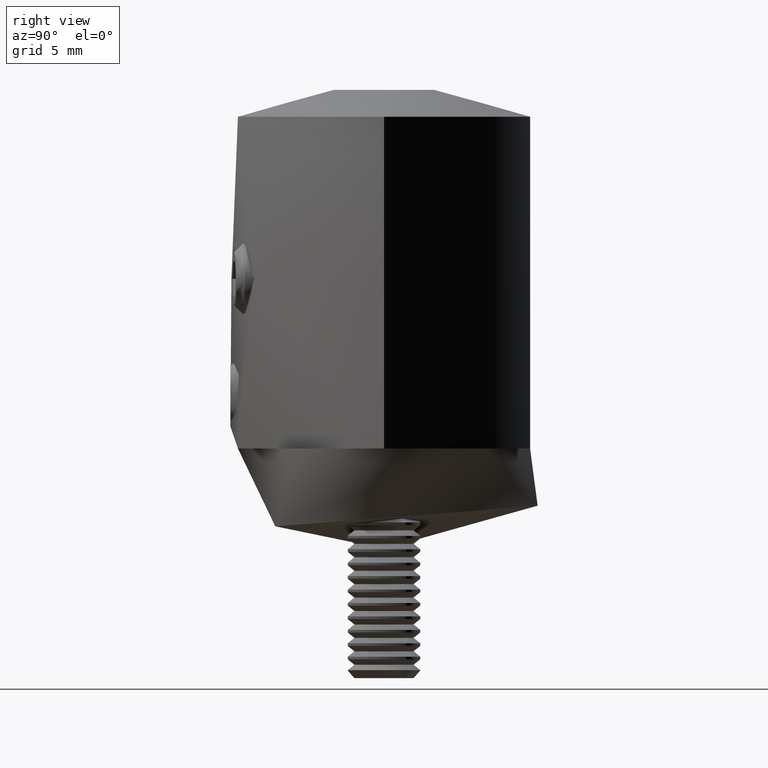
[diagram: clean part render]
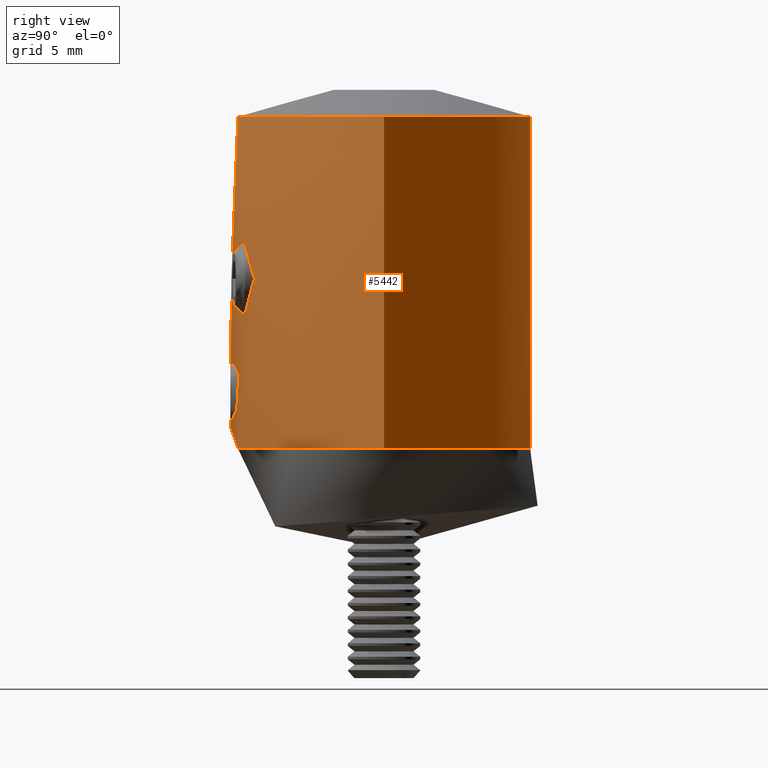
[diagram: same view with one face highlighted and labeled with its STEP entity id]
A machine part, right view. The second image highlights one B-rep face of the part: STEP entity #5442.
In plain terms, the highlighted cylindrical surface (bore or boss wall) has radius 11 mm, axis along (0, 0, 1).
Its self-contained STEP definition (entity closure, byte-faithful):
#13 = CARTESIAN_POINT ( 'NONE',  ( 11.00000000000000000, -1.084202172485504400E-016, 11.29999999999999900 ) ) ;
#27 = DIRECTION ( 'NONE',  ( -0.0000000000000000000, -0.0000000000000000000, 1.000000000000000000 ) ) ;
#55 = CARTESIAN_POINT ( 'NONE',  ( -3.035937914489495300, -10.57673556871105800, 9.933502450584205300 ) ) ;
#114 = CARTESIAN_POINT ( 'NONE',  ( 9.750955816283148900, 5.091093399825955300, 16.74569809806015600 ) ) ;
#142 = CARTESIAN_POINT ( 'NONE',  ( -1.268443744210112200, -10.93091935414430800, 6.108644643610253100 ) ) ;
#154 = CARTESIAN_POINT ( 'NONE',  ( -3.336884758183825900, -10.48279922661845600, 14.40472746973071800 ) ) ;
#202 = CARTESIAN_POINT ( 'NONE',  ( 9.831401816782660700, 4.934482580680001900, 15.06731954339826500 ) ) ;
#230 = EDGE_LOOP ( 'NONE', ( #1372 ) ) ;
#242 = CARTESIAN_POINT ( 'NONE',  ( -2.612425950417486000, -10.68627171445358400, 14.20359043715892300 ) ) ;
#292 = CARTESIAN_POINT ( 'NONE',  ( 10.92203846952602400, -1.349500825788743100, 21.32996568247476800 ) ) ;
#326 = CARTESIAN_POINT ( 'NONE',  ( -2.096899962168798900, -10.79886876335964300, 13.87849572818714500 ) ) ;
#338 = CARTESIAN_POINT ( 'NONE',  ( -10.07530021768211400, 4.419092927928359100, 13.83261717824195000 ) ) ;
#435 = CARTESIAN_POINT ( 'NONE',  ( -11.00031598307092100, -0.3266202780843061600, 21.50068153325095800 ) ) ;
#514 = CARTESIAN_POINT ( 'NONE',  ( 1.587736309376489400, -10.88550082318080200, 10.98846054537103000 ) ) ;
#522 = CARTESIAN_POINT ( 'NONE',  ( -10.31158215273080500, -3.838254438372356200, 19.77438753519448200 ) ) ;
#606 = CARTESIAN_POINT ( 'NONE',  ( 1.359436225987471000, -10.91571837052436900, 11.55256302524067100 ) ) ;
#613 = CARTESIAN_POINT ( 'NONE',  ( -10.23062083369498000, -4.046496105150158200, 19.52160426523857600 ) ) ;
#699 = CARTESIAN_POINT ( 'NONE',  ( 5.290359304442595200, -9.644959230377898200, 10.64847557910667000 ) ) ;
#709 = CARTESIAN_POINT ( 'NONE',  ( -10.76607921010692700, 2.278039284623406300, 11.82485560310605200 ) ) ;
#897 = CARTESIAN_POINT ( 'NONE',  ( 2.346983905069512500, -10.74670491589606200, 10.24603087601302100 ) ) ;
#996 = CARTESIAN_POINT ( 'NONE',  ( 2.898603986856243000, -10.61223336305562300, 14.31355363986753000 ) ) ;
#1201 = CARTESIAN_POINT ( 'NONE',  ( 3.489927570238195600, -10.43286345160808000, 14.41621972085257400 ) ) ;
#1212 = CARTESIAN_POINT ( 'NONE',  ( -10.30907895527403900, -3.845060912577609200, 13.03314621997213000 ) ) ;
#1296 = CARTESIAN_POINT ( 'NONE',  ( 4.214515372006599300, -10.16176481817063500, 14.33152309609944400 ) ) ;
#1348 = B_SPLINE_CURVE_WITH_KNOTS ( 'NONE', 3,
 ( #19631, #10912, #26260, #26064, #13130, #23751, #10821, #21646, #12942, #26159, #15124, #28469, #17325, #4169, #15328, #2131, #19539, #6388, #21746, #23936, #6864, #9163, #22122, #13231, #11190, #26444, #24242, #13411, #15696, #8799, #15608, #24139, #22212, #26633, #292, #11093, #13319, #4458, #26351, #21945, #17876, #19831, #24407, #2505, #22300, #15784, #9073, #11274, #24504, #26534, #4721, #11003, #2316, #114, #15517, #17972, #13497, #202, #2598, #6677, #20103, #22031, #26724, #4540, #8982, #13592, #6768, #15423, #6951, #17697, #19921, #2405, #24319, #13 ),
 .UNSPECIFIED., .T., .F.,
 ( 4, 2, 2, 2, 2, 2, 2, 2, 2, 2, 2, 2, 2, 2, 2, 2, 2, 2, 2, 2, 2, 2, 2, 2, 2, 2, 2, 2, 2, 2, 2, 2, 2, 2, 2, 2, 4 ),
 ( 0.0000000000000000000, 0.001010597652588617900, 0.002021195305177235400, 0.003031792957765852900, 0.004042390610354470000, 0.005052988262943087000, 0.006063585915531705800, 0.006568884741826014300, 0.007074183568120321100, 0.008084781220708941700, 0.008590080047003246700, 0.009095378873297553500, 0.01010597652588616200, 0.01111657417847477400, 0.01212717183106338400, 0.01313776948365199600, 0.01414836713624060600, 0.01515896478882921400, 0.01616956244141782400, 0.01718016009400643800, 0.01819075774659504800, 0.01920135539918365800, 0.02021195305177226800, 0.02122255070436087800, 0.02223314835694948900, 0.02324374600953810200, 0.02374904483583240700, 0.02425434366212671200, 0.02526494131471532200, 0.02627553896730392600, 0.02728613661989253200, 0.02829673427248113200, 0.02930733192506973500, 0.02981263075136404000, 0.03031792957765834200, 0.03132852723024694800, 0.03233912488283555800 ),
 .UNSPECIFIED. ) ;
#1372 = ORIENTED_EDGE ( 'NONE', *, *, #11858, .T. ) ;
#1391 = CARTESIAN_POINT ( 'NONE',  ( 2.211300437937035100, -10.77781980991491300, 13.98662167966411500 ) ) ;
#1432 = VERTEX_POINT ( 'NONE', #17341 ) ;
#1511 = CARTESIAN_POINT ( 'NONE',  ( -2.020667218593132300E-015, -10.99999999999999800, 1.584844900694847100 ) ) ;
#1697 = CARTESIAN_POINT ( 'NONE',  ( -2.430626934630721900, -10.72814813956303400, 3.370817171176732100 ) ) ;
#1763 = EDGE_LOOP ( 'NONE', ( #19628 ) ) ;
#1794 = CARTESIAN_POINT ( 'NONE',  ( -2.256864148927033100, -10.76618397735132300, 5.071739856433886500 ) ) ;
#1974 = CARTESIAN_POINT ( 'NONE',  ( -0.9631123533028165300, -10.95775591053731500, 6.230546734909931500 ) ) ;
#1989 = CARTESIAN_POINT ( 'NONE',  ( -1.282391820145597300, -10.92499296224104700, 11.84531756264802400 ) ) ;
#2081 = CARTESIAN_POINT ( 'NONE',  ( -4.742177440321203400, -9.926185626313431600, 10.19436772286568200 ) ) ;
#2123 = VERTEX_POINT ( 'NONE', #15054 ) ;
#2131 = CARTESIAN_POINT ( 'NONE',  ( 9.836864287762125500, -4.923327614744372300, 15.05868010317692600 ) ) ;
#2158 = CARTESIAN_POINT ( 'NONE',  ( 0.4897246382423631200, -10.98909321912860500, 1.631196561732932500 ) ) ;
#2253 = CARTESIAN_POINT ( 'NONE',  ( 1.116343252776195600, -10.94426300031197400, 6.169244775404881600 ) ) ;
#2265 = CARTESIAN_POINT ( 'NONE',  ( -5.773158407178154800, -9.363325565606976000, 11.55117011655923100 ) ) ;
#2316 = CARTESIAN_POINT ( 'NONE',  ( 9.768733347336898000, 5.056898271221760100, 17.08302200203814900 ) ) ;
#2341 = CARTESIAN_POINT ( 'NONE',  ( 1.777126563584013900, -10.85549727912102600, 5.706738476233899100 ) ) ;
#2405 = CARTESIAN_POINT ( 'NONE',  ( 10.98362801482573100, 0.6851161954445362800, 11.33505918355281100 ) ) ;
#2449 = CARTESIAN_POINT ( 'NONE',  ( -1.587114841413784800, -10.88558450099118200, 13.31011841839390500 ) ) ;
#2505 = CARTESIAN_POINT ( 'NONE',  ( 10.55378527435345500, 3.114166653605242800, 20.45225437055679100 ) ) ;
#2557 = CARTESIAN_POINT ( 'NONE',  ( -10.55213191267872700, 3.119896509840596200, 12.35200189701629700 ) ) ;
#2598 = CARTESIAN_POINT ( 'NONE',  ( 9.880766135392448700, 4.836382232452138800, 14.74751872209966700 ) ) ;
#2647 = CARTESIAN_POINT ( 'NONE',  ( -10.55011019610969000, 3.126729857943599800, 20.44275101567399100 ) ) ;
#2725 = CARTESIAN_POINT ( 'NONE',  ( -3.631112906053821200, -10.38340113178188400, 14.41328954793064900 ) ) ;
#2726 = CARTESIAN_POINT ( 'NONE',  ( 3.187970294722303000, -10.52790793082691000, 9.921390849775974600 ) ) ;
#2739 = CARTESIAN_POINT ( 'NONE',  ( -10.99999999999999600, 1.897353801849632800E-016, 11.29999999999999900 ) ) ;
#2832 = CARTESIAN_POINT ( 'NONE',  ( -9.833678025644271500, -4.929959429588498300, 17.74888431453494800 ) ) ;
#3014 = CARTESIAN_POINT ( 'NONE',  ( 4.987139946565676500, -9.807191017635261700, 10.34399056327450800 ) ) ;
#3146 = CYLINDRICAL_SURFACE ( 'NONE', #18528, 10.99999999999999800 ) ;
#3312 = CARTESIAN_POINT ( 'NONE',  ( 2.473729417275987200, -10.72223255056439800, 14.15069574582582100 ) ) ;
#3321 = CARTESIAN_POINT ( 'NONE',  ( -10.98362801482573100, -0.6851161954445393900, 11.33505918355280800 ) ) ;
#3510 = CARTESIAN_POINT ( 'NONE',  ( 3.191726823003939300, -10.52676967959863500, 14.37926662916566300 ) ) ;
#3522 = FACE_BOUND ( 'NONE', #19496, .T. ) ;
#3683 = DIRECTION ( 'NONE',  ( -0.0000000000000000000, -0.0000000000000000000, 1.000000000000000000 ) ) ;
#3907 = CARTESIAN_POINT ( 'NONE',  ( -2.495363705507605000, -10.71327480271960800, 4.317531738034352500 ) ) ;
#4112 = CARTESIAN_POINT ( 'NONE',  ( -4.860537567579045000, -9.867886022555831400, 10.27466258085798300 ) ) ;
#4169 = CARTESIAN_POINT ( 'NONE',  ( 9.913515838807216000, -4.767307365066426600, 14.58060640433451600 ) ) ;
#4196 = CARTESIAN_POINT ( 'NONE',  ( 1.660782927785467800, -10.87454360748031900, 5.818738680863162000 ) ) ;
#4209 = CARTESIAN_POINT ( 'NONE',  ( -1.877536749602062100, -10.83916244883226900, 10.62961404178835600 ) ) ;
#4296 = CARTESIAN_POINT ( 'NONE',  ( 1.263044276341072700, -10.92810671215594800, 6.093506342078076600 ) ) ;
#4310 = CARTESIAN_POINT ( 'NONE',  ( -5.293055447504852600, -9.643499864571598600, 10.65133670993443200 ) ) ;
#4390 = CARTESIAN_POINT ( 'NONE',  ( 0.3311095053121640400, -10.99992139316571600, 6.414830767918807900 ) ) ;
#4404 = CARTESIAN_POINT ( 'NONE',  ( -4.745557097002325100, -9.927949961306412200, 14.11977325473042900 ) ) ;
#4458 = CARTESIAN_POINT ( 'NONE',  ( 11.00031598307091900, 0.3266202780843043800, 21.50068153325095100 ) ) ;
#4481 = CARTESIAN_POINT ( 'NONE',  ( 2.495297978060744700, -10.71329013739285200, 3.682043413930197400 ) ) ;
#4491 = CARTESIAN_POINT ( 'NONE',  ( -4.978897694836887500, -9.809586418798231100, 10.35495743885028700 ) ) ;
#4540 = CARTESIAN_POINT ( 'NONE',  ( 10.47201491691117100, 3.376167339972384200, 12.56311429802452300 ) ) ;
#4566 = CARTESIAN_POINT ( 'NONE',  ( 2.511799944583926100, -10.70938191707799400, 4.156688389902742000 ) ) ;
#4679 = CARTESIAN_POINT ( 'NONE',  ( -9.831210612696358100, 4.934853384125918100, 17.73043615380184000 ) ) ;
#4721 = CARTESIAN_POINT ( 'NONE',  ( 9.833678025644266200, 4.929959429588495600, 17.74888431453495100 ) ) ;
#4770 = CARTESIAN_POINT ( 'NONE',  ( -9.745983956010393400, -5.100568316517894600, 16.07184845647866600 ) ) ;
#4779 = CARTESIAN_POINT ( 'NONE',  ( 0.0000000000000000000, 0.0000000000000000000, 25.99999999999999600 ) ) ;
#4861 = CARTESIAN_POINT ( 'NONE',  ( 3.484545508913013700, -10.43466798055165900, 9.883988400145138800 ) ) ;
#4868 = CARTESIAN_POINT ( 'NONE',  ( -10.22735391402577100, 4.054721379485367400, 19.51095471163538200 ) ) ;
#4898 = FACE_BOUND ( 'NONE', #22074, .T. ) ;
#4955 = CARTESIAN_POINT ( 'NONE',  ( 1.329376035020887200, -10.91937541059524500, 12.60278513498421300 ) ) ;
#4962 = CARTESIAN_POINT ( 'NONE',  ( -9.763479344190180600, -5.067548827356644900, 15.73283853468677900 ) ) ;
#5053 = CARTESIAN_POINT ( 'NONE',  ( 1.690962442197724500, -10.86925232106958800, 13.43174385375162800 ) ) ;
#5063 = CARTESIAN_POINT ( 'NONE',  ( -9.880785821988753900, 4.836366772746157700, 18.05286453897976500 ) ) ;
#5137 = CARTESIAN_POINT ( 'NONE',  ( 5.189286185150288900, -9.699036492797020500, 10.54698057382928200 ) ) ;
#5336 = CARTESIAN_POINT ( 'NONE',  ( 4.485806426616502300, -10.04378119549236500, 14.23031073957186400 ) ) ;
#5438 = CARTESIAN_POINT ( 'NONE',  ( 3.636846498602108300, -10.38139429679874600, 14.41317786641818800 ) ) ;
#5442 = ADVANCED_FACE ( 'NONE', ( #8017, #3522, #18279, #4898, #11763, #12492, #26210 ), #3146, .T. ) ;
#5531 = CARTESIAN_POINT ( 'NONE',  ( 3.044734705741703800, -10.57133783276581900, 14.35366066537379700 ) ) ;
#5640 = CARTESIAN_POINT ( 'NONE',  ( 5.294704241020110800, -9.642578260186988700, 13.64662742966781300 ) ) ;
#5732 = CARTESIAN_POINT ( 'NONE',  ( 2.756979130329491000, -10.64889975889188100, 14.25926767518696200 ) ) ;
#5742 = EDGE_LOOP ( 'NONE', ( #27136 ) ) ;
#5911 = VERTEX_POINT ( 'NONE', #17067 ) ;
#5947 = ORIENTED_EDGE ( 'NONE', *, *, #14607, .T. ) ;
#6101 = B_SPLINE_CURVE_WITH_KNOTS ( 'NONE', 3,
 ( #15166, #1989, #10953, #24077, #8837, #6427, #17367, #17463, #4209, #15077, #10676, #13268, #19575, #8745, #21794, #8643, #55, #26298, #26203, #22068, #19489, #15270, #21689, #6523, #13173, #17269, #2081, #4112, #4491, #23883, #15460, #4310, #19868, #23982, #6337, #8550, #28414, #23795, #2265, #10861, #26103, #17642, #12891, #12983, #17547, #26016, #28217, #28318, #13077, #19675, #21891, #28508, #15368, #4404, #19776, #6616, #24183, #19954, #11312, #9299, #2725, #7086, #154, #8936, #24640, #11136, #22427, #242, #15912, #26671, #26477, #326, #11404, #15646, #2449, #17739, #18105, #17824, #20047 ),
 .UNSPECIFIED., .T., .F.,
 ( 4, 3, 3, 3, 3, 3, 3, 3, 3, 3, 3, 3, 3, 3, 3, 3, 3, 3, 3, 3, 3, 3, 3, 3, 3, 3, 4 ),
 ( 0.0000000000000000000, 0.03846153846153846400, 0.07692307692307692700, 0.1153846153846153900, 0.1538461538461538500, 0.1923076923076923200, 0.2307692307692307800, 0.2692307692307692200, 0.3076923076923077100, 0.3461538461538461500, 0.3846153846153846400, 0.4230769230769230700, 0.4615384615384615600, 0.5000000000000000000, 0.5384615384615384400, 0.5769230769230768700, 0.6153846153846154200, 0.6538461538461538500, 0.6923076923076922900, 0.7307692307692307300, 0.7692307692307692700, 0.8076923076923077100, 0.8461538461538461500, 0.8846153846153845800, 0.9230769230769231300, 0.9615384615384615600, 1.000000000000000000 ),
 .UNSPECIFIED. ) ;
#6212 = CARTESIAN_POINT ( 'NONE',  ( 5.847476950925000400, -9.317028137147639600, 12.14999999999999900 ) ) ;
#6225 = CARTESIAN_POINT ( 'NONE',  ( -2.177980241879993600, -10.78262365602483500, 5.213167996627087900 ) ) ;
#6320 = CARTESIAN_POINT ( 'NONE',  ( -2.430803093581094000, -10.72810763096586800, 4.628396887069898800 ) ) ;
#6337 = CARTESIAN_POINT ( 'NONE',  ( -5.546267962128735200, -9.499873127938704100, 11.00551369772300700 ) ) ;
#6388 = CARTESIAN_POINT ( 'NONE',  ( 9.764554807653103900, -5.065479761543580900, 15.71864772819508700 ) ) ;
#6415 = CARTESIAN_POINT ( 'NONE',  ( 2.431469541523701300, -10.72795581613253500, 4.625850491968456000 ) ) ;
#6427 = CARTESIAN_POINT ( 'NONE',  ( -1.601681103762812700, -10.88312585316970300, 10.99539881629933700 ) ) ;
#6508 = CARTESIAN_POINT ( 'NONE',  ( 2.256830909742726800, -10.76619328781119300, 5.071927192361033400 ) ) ;
#6523 = CARTESIAN_POINT ( 'NONE',  ( -4.349161509504773100, -10.10474981273242400, 10.01138066265118100 ) ) ;
#6602 = CARTESIAN_POINT ( 'NONE',  ( 2.430721202022804000, -10.72812621128730700, 3.371317447623022100 ) ) ;
#6616 = CARTESIAN_POINT ( 'NONE',  ( -4.347320099039778000, -10.10553974833917600, 14.28925830959905100 ) ) ;
#6677 = CARTESIAN_POINT ( 'NONE',  ( 10.00222700330179600, 4.579911297734634300, 14.13158646250898800 ) ) ;
#6702 = CARTESIAN_POINT ( 'NONE',  ( 1.774878405260975000, -10.85586508052390200, 2.291099913721534000 ) ) ;
#6768 = CARTESIAN_POINT ( 'NONE',  ( 10.69623310193278500, 2.571608090004069400, 11.99266754206867200 ) ) ;
#6798 = CARTESIAN_POINT ( 'NONE',  ( 2.381829622718711000, -10.73922843645587700, 3.217404884529632800 ) ) ;
#6864 = CARTESIAN_POINT ( 'NONE',  ( 9.750431221126522300, -5.092096281612857200, 16.73088962366718100 ) ) ;
#6913 = CARTESIAN_POINT ( 'NONE',  ( -9.768733347336896200, -5.056898271221757400, 17.08302200203814900 ) ) ;
#6951 = CARTESIAN_POINT ( 'NONE',  ( 10.79372047998855600, 2.126081526392296100, 11.76127184379781300 ) ) ;
#7004 = CARTESIAN_POINT ( 'NONE',  ( -10.47192994644006200, 3.376204713791207900, 12.56352283884599100 ) ) ;
#7086 = CARTESIAN_POINT ( 'NONE',  ( -3.483483757282106000, -10.43502757870532300, 14.41598415133658400 ) ) ;
#7088 = CARTESIAN_POINT ( 'NONE',  ( 1.282320853987962500, -10.92500129187303800, 12.15294331819761300 ) ) ;
#7097 = CARTESIAN_POINT ( 'NONE',  ( -10.47088620841679000, 3.379449766977663300, 20.23365674153711100 ) ) ;
#7178 = ORIENTED_EDGE ( 'NONE', *, *, #23707, .F. ) ;
#7186 = CARTESIAN_POINT ( 'NONE',  ( 2.613172333883406800, -10.68609581611611000, 10.09603274626676500 ) ) ;
#7196 = CARTESIAN_POINT ( 'NONE',  ( -10.70022606909253100, -2.566238421094046100, 20.81964023380005500 ) ) ;
#7277 = CARTESIAN_POINT ( 'NONE',  ( 3.631849595200657500, -10.38314347959426000, 9.886724001491202800 ) ) ;
#7284 = CARTESIAN_POINT ( 'NONE',  ( -9.782123209470828600, -5.031053208532882500, 17.25264343705779500 ) ) ;
#7371 = CARTESIAN_POINT ( 'NONE',  ( 3.040114147432284600, -10.57268045434722700, 9.947393734827217700 ) ) ;
#7403 = EDGE_CURVE ( 'NONE', #10760, #10760, #12833, .T. ) ;
#7468 = CARTESIAN_POINT ( 'NONE',  ( 2.098869778576717400, -10.79849744731998800, 10.41974819371364400 ) ) ;
#7758 = CARTESIAN_POINT ( 'NONE',  ( 5.847544478752919200, -9.316985755884912700, 12.44954029454594900 ) ) ;
#8017 = FACE_BOUND ( 'NONE', #23227, .T. ) ;
#8350 = CARTESIAN_POINT ( 'NONE',  ( -1.533328306870229700, -10.89347143110832900, 2.080631270009437800 ) ) ;
#8444 = CARTESIAN_POINT ( 'NONE',  ( -0.9635496633443911800, -10.95771746515983500, 1.769627895335405900 ) ) ;
#8533 = CARTESIAN_POINT ( 'NONE',  ( -2.179285043678576000, -10.78236625296386300, 2.788823219965029600 ) ) ;
#8550 = CARTESIAN_POINT ( 'NONE',  ( -5.614627605015893900, -9.459411790499098400, 11.13251968643668900 ) ) ;
#8631 = CARTESIAN_POINT ( 'NONE',  ( 2.318934602487287200, -10.75279230290379400, 3.072080269349922100 ) ) ;
#8643 = CARTESIAN_POINT ( 'NONE',  ( -2.754922706603456300, -10.64943195107798400, 10.04152162696468600 ) ) ;
#8729 = CARTESIAN_POINT ( 'NONE',  ( 2.178857699620390800, -10.78245327803794100, 2.788117446777010700 ) ) ;
#8745 = CARTESIAN_POINT ( 'NONE',  ( -2.476709508622522800, -10.71837044060291800, 10.16426129518790900 ) ) ;
#8799 = CARTESIAN_POINT ( 'NONE',  ( 10.47088620841679000, -3.379449766977662900, 20.23365674153711100 ) ) ;
#8825 = CARTESIAN_POINT ( 'NONE',  ( -0.3276201266150175500, -10.99632626431669300, 6.399832416815710800 ) ) ;
#8837 = CARTESIAN_POINT ( 'NONE',  ( -1.527190029316933400, -10.89364210904039400, 11.12788211107018600 ) ) ;
#8920 = CARTESIAN_POINT ( 'NONE',  ( 2.179889364258604400, -10.78223673683875500, 5.210013498370140700 ) ) ;
#8936 = CARTESIAN_POINT ( 'NONE',  ( -3.188991155148877400, -10.52759874864074300, 14.37878845237148800 ) ) ;
#8982 = CARTESIAN_POINT ( 'NONE',  ( 10.55128804721513100, 3.122534710036636100, 12.35424311392541900 ) ) ;
#9008 = CARTESIAN_POINT ( 'NONE',  ( 0.9648935137385287200, -10.95759921274479100, 6.229834885426770400 ) ) ;
#9073 = CARTESIAN_POINT ( 'NONE',  ( 10.23062083369497800, 4.046496105150160000, 19.52160426523856900 ) ) ;
#9124 = CARTESIAN_POINT ( 'NONE',  ( -9.780729526921806600, 5.033756045906779200, 17.23636692954555400 ) ) ;
#9163 = CARTESIAN_POINT ( 'NONE',  ( 9.767782344364496400, -5.058733202320076400, 17.06944071582966400 ) ) ;
#9215 = CARTESIAN_POINT ( 'NONE',  ( -9.913515838807221300, 4.767307365066429300, 14.58060640433452400 ) ) ;
#9299 = CARTESIAN_POINT ( 'NONE',  ( -3.778742054825536400, -10.33177468485844700, 14.41059494452471600 ) ) ;
#9312 = CARTESIAN_POINT ( 'NONE',  ( -10.98409477427311600, 0.6774680798639229900, 11.33405321981837200 ) ) ;
#9400 = CARTESIAN_POINT ( 'NONE',  ( 1.467256935775968400, -10.90170432017018400, 13.03433002751525100 ) ) ;
#9407 = CARTESIAN_POINT ( 'NONE',  ( -9.880766135392452300, -4.836382232452141500, 14.74751872209966700 ) ) ;
#9490 = CARTESIAN_POINT ( 'NONE',  ( 4.215941944069905700, -10.16412648051035100, 9.954823629621406800 ) ) ;
#9502 = CARTESIAN_POINT ( 'NONE',  ( -10.31115410062419500, 3.839293709232861000, 13.02699850404312800 ) ) ;
#9584 = CARTESIAN_POINT ( 'NONE',  ( 2.475506280623929600, -10.71863678252605300, 10.16500159250519200 ) ) ;
#9681 = CARTESIAN_POINT ( 'NONE',  ( 1.297462502304604500, -10.92325800538665700, 11.85073903535987900 ) ) ;
#9877 = CARTESIAN_POINT ( 'NONE',  ( 4.354020002231268700, -10.10264034205694900, 14.28682636998471600 ) ) ;
#9884 = CARTESIAN_POINT ( 'NONE',  ( -10.47201491691116500, -3.376167339972387300, 12.56311429802451800 ) ) ;
#10577 = CARTESIAN_POINT ( 'NONE',  ( -1.996072047008083900, -10.81778173646557100, 2.525478995051488900 ) ) ;
#10676 = CARTESIAN_POINT ( 'NONE',  ( -2.098224510662910300, -10.79861290819960800, 10.42038777378109800 ) ) ;
#10750 = CARTESIAN_POINT ( 'NONE',  ( -2.087083062809130600, -10.80018908579545200, 5.343704459521158700 ) ) ;
#10760 = VERTEX_POINT ( 'NONE', #12865 ) ;
#10821 = CARTESIAN_POINT ( 'NONE',  ( 10.69954747067740900, -2.569226743090022400, 11.98195554385583300 ) ) ;
#10861 = CARTESIAN_POINT ( 'NONE',  ( -5.802875604673855200, -9.344872108096556200, 11.69963442019063700 ) ) ;
#10912 = CARTESIAN_POINT ( 'NONE',  ( 11.00000000000000000, -0.3420402686100476000, 11.30000000000000100 ) ) ;
#10937 = CARTESIAN_POINT ( 'NONE',  ( 1.893470199382560000, -10.83645095076173300, 5.594738271604635200 ) ) ;
#10953 = CARTESIAN_POINT ( 'NONE',  ( -1.345172046901324900, -10.91812728018170200, 11.54634040648865900 ) ) ;
#11003 = CARTESIAN_POINT ( 'NONE',  ( 9.782123209470828600, 5.031053208532882500, 17.25264343705779500 ) ) ;
#11026 = CARTESIAN_POINT ( 'NONE',  ( 2.089123661313935900, -10.79979455025595500, 5.340769317046009800 ) ) ;
#11093 = CARTESIAN_POINT ( 'NONE',  ( 10.98389058231152400, -0.6828063300958886500, 21.46551967963449000 ) ) ;
#11121 = CARTESIAN_POINT ( 'NONE',  ( 2.495530447802617200, -10.71323517469580200, 4.316057407643017800 ) ) ;
#11136 = CARTESIAN_POINT ( 'NONE',  ( -2.894177902049644800, -10.61343049031899700, 14.31211899046387300 ) ) ;
#11190 = CARTESIAN_POINT ( 'NONE',  ( 9.880785821988753900, -4.836366772746158600, 18.05286453897976900 ) ) ;
#11274 = CARTESIAN_POINT ( 'NONE',  ( 10.07729814196231300, 4.414498332747689000, 18.97502395870773400 ) ) ;
#11312 = CARTESIAN_POINT ( 'NONE',  ( -3.925538127540493200, -10.27684899732197900, 14.39360971242493800 ) ) ;
#11320 = CARTESIAN_POINT ( 'NONE',  ( -10.22938670084714000, 4.049654862654770100, 13.28228732040598100 ) ) ;
#11404 = CARTESIAN_POINT ( 'NONE',  ( -1.986689022383951300, -10.81910655869231300, 13.77386861439415500 ) ) ;
#11411 = CARTESIAN_POINT ( 'NONE',  ( -10.76524624909549000, 2.281684813646021900, 20.97317419629084200 ) ) ;
#11495 = CARTESIAN_POINT ( 'NONE',  ( 5.847476950925000400, -9.317028137147639600, 12.14999999999999900 ) ) ;
#11504 = CARTESIAN_POINT ( 'NONE',  ( -10.92420653231054900, -1.331174097726975900, 21.33474963736254500 ) ) ;
#11595 = CARTESIAN_POINT ( 'NONE',  ( -10.99999999999999600, 0.3420402686100470500, 11.29999999999999900 ) ) ;
#11689 = CARTESIAN_POINT ( 'NONE',  ( -9.750431221126522300, 5.092096281612858100, 16.73088962366718100 ) ) ;
#11763 = FACE_BOUND ( 'NONE', #230, .T. ) ;
#11778 = CARTESIAN_POINT ( 'NONE',  ( 2.754512253586975900, -10.64953812354503700, 10.04167943430237000 ) ) ;
#11856 = AXIS2_PLACEMENT_3D ( 'NONE', #27417, #3683, #25591 ) ;
#11858 = EDGE_CURVE ( 'NONE', #2123, #2123, #1348, .T. ) ;
#11879 = CARTESIAN_POINT ( 'NONE',  ( 1.298220520602855900, -10.92316842921294800, 12.45438193986170500 ) ) ;
#11971 = CARTESIAN_POINT ( 'NONE',  ( 5.548538165988089700, -9.498554387047601500, 13.29072978312783900 ) ) ;
#12080 = CARTESIAN_POINT ( 'NONE',  ( 5.467084470818230500, -9.545207561333493000, 13.41310784844748800 ) ) ;
#12179 = CARTESIAN_POINT ( 'NONE',  ( 4.071792562094852700, -10.21863519905026200, 14.36231509824391800 ) ) ;
#12375 = CARTESIAN_POINT ( 'NONE',  ( 1.877320584400411300, -10.83921029382861300, 13.67027739227517100 ) ) ;
#12492 = FACE_OUTER_BOUND ( 'NONE', #23628, .T. ) ;
#12594 = CARTESIAN_POINT ( 'NONE',  ( -0.3315329495189393000, -10.99999999999999600, 1.584844930053871600 ) ) ;
#12685 = CARTESIAN_POINT ( 'NONE',  ( -2.257482614945340400, -10.76605286276967800, 2.929546619533276000 ) ) ;
#12779 = CARTESIAN_POINT ( 'NONE',  ( -2.463083399544349300, -10.72069121684273800, 4.472964312552125700 ) ) ;
#12833 = B_SPLINE_CURVE_WITH_KNOTS ( 'NONE', 3,
 ( #2739, #11595, #9312, #15831, #26772, #709, #24837, #2557, #7004, #9502, #11320, #338, #27049, #9215, #17832, #18022, #20431, #15743, #20237, #18205, #11689, #16018, #9124, #4679, #5063, #26961, #13642, #4868, #20332, #7097, #2647, #13821, #11411, #24460, #22620, #18115, #13917, #435, #24651, #11504, #26865, #22260, #7196, #24745, #13729, #522, #613, #15921, #26682, #20058, #2832, #7284, #6913, #13550, #17931, #4770, #4962, #22531, #9407, #20150, #22350, #24559, #1212, #9884, #22911, #27545, #16200, #25224, #16298, #25128, #22713, #3321, #14196, #20710 ),
 .UNSPECIFIED., .T., .F.,
 ( 4, 2, 2, 2, 2, 2, 2, 2, 2, 2, 2, 2, 2, 2, 2, 2, 2, 2, 2, 2, 2, 2, 2, 2, 2, 2, 2, 2, 2, 2, 2, 2, 2, 2, 2, 2, 4 ),
 ( 0.0000000000000000000, 0.001010597652588613400, 0.002021195305177226700, 0.003031792957765840300, 0.004042390610354453500, 0.005052988262943067100, 0.006063585915531680700, 0.006568884741825987500, 0.007074183568120294200, 0.008084781220708912200, 0.008590080047003219000, 0.009095378873297522300, 0.01010597652588613100, 0.01111657417847473900, 0.01212717183106334700, 0.01313776948365195400, 0.01414836713624056200, 0.01515896478882917100, 0.01616956244141777900, 0.01718016009400638600, 0.01819075774659499300, 0.01920135539918359900, 0.02021195305177220200, 0.02122255070436081200, 0.02223314835694942600, 0.02324374600953803300, 0.02374904483583233800, 0.02425434366212663900, 0.02526494131471526000, 0.02627553896730387000, 0.02728613661989248400, 0.02829673427248109700, 0.02930733192506971100, 0.02981263075136401600, 0.03031792957765832400, 0.03132852723024694100, 0.03233912488283555800 ),
 .UNSPECIFIED. ) ;
#12865 = CARTESIAN_POINT ( 'NONE',  ( -10.99999999999999800, 0.0000000000000000000, 11.29999999999999700 ) ) ;
#12875 = CARTESIAN_POINT ( 'NONE',  ( -1.261211241404091900, -10.92831925419361200, 1.905472548706967000 ) ) ;
#12891 = CARTESIAN_POINT ( 'NONE',  ( -5.847476887322439900, -9.317028177065356700, 12.15054059300502600 ) ) ;
#12942 = CARTESIAN_POINT ( 'NONE',  ( 10.47192994644006200, -3.376204713791206100, 12.56352283884598900 ) ) ;
#12983 = CARTESIAN_POINT ( 'NONE',  ( -5.847475272145141300, -9.317029190769700300, 12.44996167695632000 ) ) ;
#13063 = CARTESIAN_POINT ( 'NONE',  ( 2.383584876163826700, -10.73884196754026400, 4.778017131766939800 ) ) ;
#13077 = CARTESIAN_POINT ( 'NONE',  ( -5.464705314295977200, -9.546569846175390900, 13.41667514159514800 ) ) ;
#13108 = EDGE_CURVE ( 'NONE', #19670, #19670, #22996, .T. ) ;
#13130 = CARTESIAN_POINT ( 'NONE',  ( 10.87817437663434800, -1.662301648955468900, 11.56697170889746400 ) ) ;
#13158 = CARTESIAN_POINT ( 'NONE',  ( 2.087175410688430600, -10.80017123961548500, 2.656428170776617300 ) ) ;
#13173 = CARTESIAN_POINT ( 'NONE',  ( -4.482049221123339100, -10.04545841559396600, 10.06808195879265900 ) ) ;
#13231 = CARTESIAN_POINT ( 'NONE',  ( 9.831210612696356300, -4.934853384125914600, 17.73043615380182200 ) ) ;
#13258 = CARTESIAN_POINT ( 'NONE',  ( 1.998357958369267700, -10.81735236367315700, 5.471525135721878800 ) ) ;
#13268 = CARTESIAN_POINT ( 'NONE',  ( -2.217823115885615400, -10.77491603302480500, 10.32744439910032800 ) ) ;
#13319 = CARTESIAN_POINT ( 'NONE',  ( 10.99967404411871500, -0.3475679165322339000, 21.49929695674811500 ) ) ;
#13345 = CARTESIAN_POINT ( 'NONE',  ( -0.8104466578491685800, -10.97117418873381900, 6.291497780559771200 ) ) ;
#13411 = CARTESIAN_POINT ( 'NONE',  ( 10.22735391402577700, -4.054721379485370000, 19.51095471163539200 ) ) ;
#13497 = CARTESIAN_POINT ( 'NONE',  ( 9.763479344190173500, 5.067548827356644900, 15.73283853468677900 ) ) ;
#13550 = CARTESIAN_POINT ( 'NONE',  ( -9.750955816283152400, -5.091093399825953500, 16.74569809806016000 ) ) ;
#13592 = CARTESIAN_POINT ( 'NONE',  ( 10.66112523159967700, 2.713002840732187300, 12.07834423683121400 ) ) ;
#13642 = CARTESIAN_POINT ( 'NONE',  ( -10.07413874253476000, 4.421680918401315300, 18.96272170532579100 ) ) ;
#13722 = CARTESIAN_POINT ( 'NONE',  ( 4.744187319942138700, -9.928560835331568400, 10.17964882337003700 ) ) ;
#13729 = CARTESIAN_POINT ( 'NONE',  ( -10.47336877759368400, -3.371864480480711200, 20.24047110347593300 ) ) ;
#13813 = CARTESIAN_POINT ( 'NONE',  ( 5.464938438262424600, -9.546436396163848300, 10.88367375304393300 ) ) ;
#13821 = CARTESIAN_POINT ( 'NONE',  ( -10.69790093024884900, 2.576078500588504300, 20.81407917215977200 ) ) ;
#13906 = CARTESIAN_POINT ( 'NONE',  ( 5.615909677273783100, -9.458643647998144400, 11.13539096546907500 ) ) ;
#13917 = CARTESIAN_POINT ( 'NONE',  ( -10.99967404411871300, 0.3475679165322346200, 21.49929695674811800 ) ) ;
#13991 = CARTESIAN_POINT ( 'NONE',  ( 1.405453041536070000, -10.91001651868284700, 11.40786817779916400 ) ) ;
#14086 = CARTESIAN_POINT ( 'NONE',  ( 1.406668454669272900, -10.90985890467560400, 12.89535290886174200 ) ) ;
#14186 = CARTESIAN_POINT ( 'NONE',  ( 1.778378226952213000, -10.85565278317050500, 13.55584042646952100 ) ) ;
#14196 = CARTESIAN_POINT ( 'NONE',  ( -10.99999999999999800, -0.3420402686100491000, 11.29999999999999900 ) ) ;
#14290 = CARTESIAN_POINT ( 'NONE',  ( 5.787164585849720500, -9.355547032267162800, 12.75156639780171700 ) ) ;
#14607 = EDGE_CURVE ( 'NONE', #27902, #27902, #27239, .T. ) ;
#14883 = CARTESIAN_POINT ( 'NONE',  ( -2.382999229848468600, -10.73896813810681100, 3.220662270662221900 ) ) ;
#14975 = CARTESIAN_POINT ( 'NONE',  ( -2.382856163137168100, -10.73900133749352800, 4.779816620111248000 ) ) ;
#15054 = CARTESIAN_POINT ( 'NONE',  ( 11.00000000000000000, 0.0000000000000000000, 11.29999999999999700 ) ) ;
#15077 = CARTESIAN_POINT ( 'NONE',  ( -1.987880630132486100, -10.81888767851593900, 10.52500090778472800 ) ) ;
#15124 = CARTESIAN_POINT ( 'NONE',  ( 10.22938670084714200, -4.049654862654770100, 13.28228732040597700 ) ) ;
#15166 = CARTESIAN_POINT ( 'NONE',  ( -1.282318885251840300, -10.92500152295305000, 12.14999999999999900 ) ) ;
#15240 = CARTESIAN_POINT ( 'NONE',  ( 0.0000000000000000000, 0.0000000000000000000, 0.0000000000000000000 ) ) ;
#15270 = CARTESIAN_POINT ( 'NONE',  ( -4.070074727561357800, -10.21931953273143800, 9.937314943718869000 ) ) ;
#15328 = CARTESIAN_POINT ( 'NONE',  ( 9.885833756099659200, -4.824245512483267700, 14.73718638957849000 ) ) ;
#15352 = CARTESIAN_POINT ( 'NONE',  ( 0.8106894968027548200, -10.97114265804646700, 1.708653337313666300 ) ) ;
#15368 = CARTESIAN_POINT ( 'NONE',  ( -4.986491796049617300, -9.807559931056870200, 13.95687931042134300 ) ) ;
#15423 = CARTESIAN_POINT ( 'NONE',  ( 10.76247523156004400, 2.278529707840944300, 11.83425253284901400 ) ) ;
#15448 = CARTESIAN_POINT ( 'NONE',  ( -2.020667218593132300E-015, -10.99999999999999800, 1.584844900694847100 ) ) ;
#15460 = CARTESIAN_POINT ( 'NONE',  ( -5.190517455376720200, -9.698377624398295500, 10.54821789982021200 ) ) ;
#15517 = CARTESIAN_POINT ( 'NONE',  ( 9.746435882187439500, 5.099704667917422700, 16.57715091522957400 ) ) ;
#15546 = CARTESIAN_POINT ( 'NONE',  ( -0.1616220107861330000, -11.00003883473656800, 6.415315291332948500 ) ) ;
#15608 = CARTESIAN_POINT ( 'NONE',  ( 10.55011019610968500, -3.126729857943598500, 20.44275101567398400 ) ) ;
#15646 = CARTESIAN_POINT ( 'NONE',  ( -1.766267142814256700, -10.85958214935765500, 13.56461438680817500 ) ) ;
#15696 = CARTESIAN_POINT ( 'NONE',  ( 10.30987621817060100, -3.842732241926132300, 19.76912654204613400 ) ) ;
#15743 = CARTESIAN_POINT ( 'NONE',  ( -9.764554807653102100, 5.065479761543580900, 15.71864772819509100 ) ) ;
#15784 = CARTESIAN_POINT ( 'NONE',  ( 10.31158215273080500, 3.838254438372356200, 19.77438753519447800 ) ) ;
#15831 = CARTESIAN_POINT ( 'NONE',  ( -10.92358240342935500, 1.335907363905573600, 11.46663083745702000 ) ) ;
#15894 = EDGE_CURVE ( 'NONE', #5911, #5911, #6101, .T. ) ;
#15912 = CARTESIAN_POINT ( 'NONE',  ( -2.477881799429793900, -10.71810408412184600, 14.13639519296231500 ) ) ;
#15914 = CARTESIAN_POINT ( 'NONE',  ( 4.480064632006022200, -10.04634365792096100, 10.06723622649572100 ) ) ;
#15921 = CARTESIAN_POINT ( 'NONE',  ( -10.07729814196231100, -4.414498332747689900, 18.97502395870773700 ) ) ;
#16007 = CARTESIAN_POINT ( 'NONE',  ( 1.527845416882663600, -10.89354973566476500, 13.17330714616876000 ) ) ;
#16018 = CARTESIAN_POINT ( 'NONE',  ( -9.767782344364500000, 5.058733202320079100, 17.06944071582966800 ) ) ;
#16027 = DIRECTION ( 'NONE',  ( 1.000000000000000000, 0.0000000000000000000, 0.0000000000000000000 ) ) ;
#16102 = CARTESIAN_POINT ( 'NONE',  ( 3.335826442012321400, -10.48313540730659500, 9.895387964724731600 ) ) ;
#16200 = CARTESIAN_POINT ( 'NONE',  ( -10.69623310193279800, -2.571608090004069900, 11.99266754206867500 ) ) ;
#16298 = CARTESIAN_POINT ( 'NONE',  ( -10.79372047998855100, -2.126081526392301400, 11.76127184379781600 ) ) ;
#16891 = CARTESIAN_POINT ( 'NONE',  ( -1.777212278540741600, -10.85548324659036000, 2.293344047289692400 ) ) ;
#16981 = CARTESIAN_POINT ( 'NONE',  ( -1.661524859658452900, -10.87442308525437100, 2.181962713599229900 ) ) ;
#17067 = CARTESIAN_POINT ( 'NONE',  ( -1.282318885251840300, -10.92500152295305000, 12.14999999999999900 ) ) ;
#17078 = CARTESIAN_POINT ( 'NONE',  ( -2.511716516407509900, -10.70940148379944100, 4.000337813666588400 ) ) ;
#17269 = CARTESIAN_POINT ( 'NONE',  ( -4.614936932741905200, -9.986167018455507400, 10.12478325493413900 ) ) ;
#17325 = CARTESIAN_POINT ( 'NONE',  ( 10.00436061697043800, -4.575241178648823000, 14.12254123351116800 ) ) ;
#17341 = CARTESIAN_POINT ( 'NONE',  ( 11.00000000000000000, 0.0000000000000000000, 0.0000000000000000000 ) ) ;
#17353 = CARTESIAN_POINT ( 'NONE',  ( -0.4903270790838651400, -10.98906635504204500, 6.368688208749404100 ) ) ;
#17367 = CARTESIAN_POINT ( 'NONE',  ( -1.689011196530509500, -10.86955570287923600, 10.87103042607779500 ) ) ;
#17463 = CARTESIAN_POINT ( 'NONE',  ( -1.776341289298206400, -10.85598555258876600, 10.74666203585625200 ) ) ;
#17534 = CARTESIAN_POINT ( 'NONE',  ( 0.3284569029660139900, -10.99628005263193000, 1.600367236529137300 ) ) ;
#17547 = CARTESIAN_POINT ( 'NONE',  ( -5.786167624840762100, -9.356160002430796000, 12.75463548758075700 ) ) ;
#17629 = CARTESIAN_POINT ( 'NONE',  ( 2.511631889561162000, -10.70942133164945500, 3.839907027314249300 ) ) ;
#17642 = CARTESIAN_POINT ( 'NONE',  ( -5.847477694911090000, -9.317027670213185800, 12.00083005102937900 ) ) ;
#17697 = CARTESIAN_POINT ( 'NONE',  ( 10.87810309732537600, 1.662940417430554000, 11.56712141430042700 ) ) ;
#17724 = CARTESIAN_POINT ( 'NONE',  ( 0.002621827913299337800, -10.99999968754628400, 6.415153783528235300 ) ) ;
#17739 = CARTESIAN_POINT ( 'NONE',  ( -1.466205703141277200, -10.90184575363621500, 13.03191497405564900 ) ) ;
#17824 = CARTESIAN_POINT ( 'NONE',  ( -1.282246918476069000, -10.92500997003248400, 12.45063816533545000 ) ) ;
#17832 = CARTESIAN_POINT ( 'NONE',  ( -9.885833756099657400, 4.824245512483266800, 14.73718638957849000 ) ) ;
#17876 = CARTESIAN_POINT ( 'NONE',  ( 10.87989800168600500, 1.651396176960097800, 21.23691135796434500 ) ) ;
#17931 = CARTESIAN_POINT ( 'NONE',  ( -9.746435882187436000, -5.099704667917423600, 16.57715091522956600 ) ) ;
#17972 = CARTESIAN_POINT ( 'NONE',  ( 9.745983956010393400, 5.100568316517894600, 16.07184845647866600 ) ) ;
#18015 = EDGE_CURVE ( 'NONE', #1432, #1432, #26078, .T. ) ;
#18022 = CARTESIAN_POINT ( 'NONE',  ( -9.836864287762120200, 4.923327614744370500, 15.05868010317692900 ) ) ;
#18105 = CARTESIAN_POINT ( 'NONE',  ( -1.345296564868769600, -10.91810700628124700, 12.75371152971739300 ) ) ;
#18108 = CARTESIAN_POINT ( 'NONE',  ( 1.282156153220556500, -10.92502062360793300, 12.00317585518097200 ) ) ;
#18115 = CARTESIAN_POINT ( 'NONE',  ( -10.98389058231152000, 0.6828063300958870900, 21.46551967963448200 ) ) ;
#18194 = CARTESIAN_POINT ( 'NONE',  ( 1.603546657443236000, -10.88285185896867100, 13.30764728103373400 ) ) ;
#18205 = CARTESIAN_POINT ( 'NONE',  ( -9.746124043521533100, 5.100300603888077200, 16.55970841759691200 ) ) ;
#18279 = FACE_BOUND ( 'NONE', #1763, .T. ) ;
#18528 = AXIS2_PLACEMENT_3D ( 'NONE', #4779, #26875, #16027 ) ;
#18786 = CARTESIAN_POINT ( 'NONE',  ( 4.990765848133421800, -9.805360282209605300, 13.95340446906556400 ) ) ;
#18881 = CARTESIAN_POINT ( 'NONE',  ( 3.929069752183106200, -10.27550557992988600, 14.39310710038839500 ) ) ;
#19150 = ORIENTED_EDGE ( 'NONE', *, *, #15894, .T. ) ;
#19170 = DIRECTION ( 'NONE',  ( 1.000000000000000000, 0.0000000000000000000, 0.0000000000000000000 ) ) ;
#19381 = CARTESIAN_POINT ( 'NONE',  ( -2.319860156032100400, -10.75259265742242600, 4.925778238272567200 ) ) ;
#19476 = CARTESIAN_POINT ( 'NONE',  ( -2.511703974928243700, -10.70940442520010400, 3.842739291575714100 ) ) ;
#19489 = CARTESIAN_POINT ( 'NONE',  ( -3.928343048896012000, -10.27576737366478500, 9.906851510177565600 ) ) ;
#19496 = EDGE_LOOP ( 'NONE', ( #19150 ) ) ;
#19539 = CARTESIAN_POINT ( 'NONE',  ( 9.815636342375485800, -4.965348642925767400, 15.22371585600221900 ) ) ;
#19563 = CARTESIAN_POINT ( 'NONE',  ( -1.776361239528236000, -10.85562254072522800, 5.707474951774919700 ) ) ;
#19575 = CARTESIAN_POINT ( 'NONE',  ( -2.347266312254069100, -10.74664323681386200, 10.24585284714411800 ) ) ;
#19628 = ORIENTED_EDGE ( 'NONE', *, *, #13108, .T. ) ;
#19631 = CARTESIAN_POINT ( 'NONE',  ( 11.00000000000000000, -1.084202172485504400E-016, 11.29999999999999900 ) ) ;
#19661 = CARTESIAN_POINT ( 'NONE',  ( -0.6530340315527127800, -10.98180644576739700, 6.337544000683097400 ) ) ;
#19670 = VERTEX_POINT ( 'NONE', #23684 ) ;
#19675 = CARTESIAN_POINT ( 'NONE',  ( -5.384240290188936100, -9.592630122477549600, 13.53707885892274700 ) ) ;
#19761 = CARTESIAN_POINT ( 'NONE',  ( 0.1643935056628486900, -11.00000000000000000, 1.584844886136918000 ) ) ;
#19776 = CARTESIAN_POINT ( 'NONE',  ( -4.480065765027294600, -10.04634315266158700, 14.23276329130951000 ) ) ;
#19831 = CARTESIAN_POINT ( 'NONE',  ( 10.76752374769291600, 2.271502190894515200, 20.97854765344257500 ) ) ;
#19868 = CARTESIAN_POINT ( 'NONE',  ( -5.384583013586703400, -9.592442000057182800, 10.76329256040887500 ) ) ;
#19921 = CARTESIAN_POINT ( 'NONE',  ( 10.92259533598678600, 1.344016255707064300, 11.46881049038183600 ) ) ;
#19943 = CARTESIAN_POINT ( 'NONE',  ( 2.463009590041774600, -10.72070817434008000, 3.526680430776609800 ) ) ;
#19954 = CARTESIAN_POINT ( 'NONE',  ( -4.067891627060605600, -10.22018873164728500, 14.36315321034518900 ) ) ;
#20047 = CARTESIAN_POINT ( 'NONE',  ( -1.282318885251840300, -10.92500152295305000, 12.14999999999999900 ) ) ;
#20058 = CARTESIAN_POINT ( 'NONE',  ( -9.883215163198309800, -4.831377203079143500, 18.06668807489311500 ) ) ;
#20103 = CARTESIAN_POINT ( 'NONE',  ( 10.07469812271536800, 4.420400662356026800, 13.83512119538370500 ) ) ;
#20150 = CARTESIAN_POINT ( 'NONE',  ( -10.00222700330179200, -4.579911297734634300, 14.13158646250897700 ) ) ;
#20230 = CARTESIAN_POINT ( 'NONE',  ( 1.328449364146037800, -10.91948818795551200, 11.70165103030027400 ) ) ;
#20237 = CARTESIAN_POINT ( 'NONE',  ( -9.746609327651651000, 5.099373206684540500, 16.05260251348449400 ) ) ;
#20324 = CARTESIAN_POINT ( 'NONE',  ( 1.987588538931111600, -10.81894134376879000, 10.52527786558404400 ) ) ;
#20332 = CARTESIAN_POINT ( 'NONE',  ( -10.30987621817060400, 3.842732241926132300, 19.76912654204614500 ) ) ;
#20420 = CARTESIAN_POINT ( 'NONE',  ( 2.218461529515094900, -10.77477304926607400, 10.32706015952085300 ) ) ;
#20431 = CARTESIAN_POINT ( 'NONE',  ( -9.815636342375487500, 4.965348642925768300, 15.22371585600222100 ) ) ;
#20598 = CARTESIAN_POINT ( 'NONE',  ( 5.847408648028886300, -9.317071004852323300, 11.84702165391507700 ) ) ;
#20710 = CARTESIAN_POINT ( 'NONE',  ( -10.99999999999999600, 1.897353801849632800E-016, 11.29999999999999900 ) ) ;
#21098 = CARTESIAN_POINT ( 'NONE',  ( 3.783765426966021500, -10.32992514198941200, 14.41013601198380200 ) ) ;
#21494 = CARTESIAN_POINT ( 'NONE',  ( -2.463094693421274500, -10.72068862206341100, 3.527090071124106900 ) ) ;
#21572 = AXIS2_PLACEMENT_3D ( 'NONE', #15240, #27, #19170 ) ;
#21582 = CARTESIAN_POINT ( 'NONE',  ( -0.6586619930405998000, -10.98452728326412000, 1.647857589364626800 ) ) ;
#21646 = CARTESIAN_POINT ( 'NONE',  ( 10.55213191267872500, -3.119896509840596200, 12.35200189701630300 ) ) ;
#21678 = CARTESIAN_POINT ( 'NONE',  ( -2.087678545343330000, -10.80007399471471700, 2.657151107508259000 ) ) ;
#21689 = CARTESIAN_POINT ( 'NONE',  ( -4.211806406226703100, -10.16287169179809200, 9.967778377260172500 ) ) ;
#21694 = VERTEX_POINT ( 'NONE', #24426 ) ;
#21746 = CARTESIAN_POINT ( 'NONE',  ( 9.746609327651654600, -5.099373206684544100, 16.05260251348448400 ) ) ;
#21775 = CARTESIAN_POINT ( 'NONE',  ( 2.463499994663159100, -10.72059549541417000, 4.470953949805736900 ) ) ;
#21794 = CARTESIAN_POINT ( 'NONE',  ( -2.614415102660436800, -10.68578014226144800, 10.09553121515492600 ) ) ;
#21877 = CARTESIAN_POINT ( 'NONE',  ( 2.320207892953276600, -10.75251762767572900, 4.924972162063986600 ) ) ;
#21891 = CARTESIAN_POINT ( 'NONE',  ( -5.291915243910457500, -9.644115620916396700, 13.64985188302178000 ) ) ;
#21945 = CARTESIAN_POINT ( 'NONE',  ( 10.92420653231055500, 1.331174097726976100, 21.33474963736256000 ) ) ;
#21970 = CARTESIAN_POINT ( 'NONE',  ( 1.399033590713174800, -10.91066932007638700, 6.005811658922017800 ) ) ;
#22031 = CARTESIAN_POINT ( 'NONE',  ( 10.22777535093213800, 4.053652137328402500, 13.28769383773697400 ) ) ;
#22055 = CARTESIAN_POINT ( 'NONE',  ( 1.543890676010267700, -10.89363039259128000, 2.069276441871760900 ) ) ;
#22068 = CARTESIAN_POINT ( 'NONE',  ( -3.780104657148514800, -10.33126640482623800, 9.889551682051845200 ) ) ;
#22074 = EDGE_LOOP ( 'NONE', ( #25126 ) ) ;
#22122 = CARTESIAN_POINT ( 'NONE',  ( 9.780729526921803100, -5.033756045906780100, 17.23636692954554300 ) ) ;
#22149 = CARTESIAN_POINT ( 'NONE',  ( 0.9623838866416614100, -10.95781991341035100, 1.769162574123964900 ) ) ;
#22212 = CARTESIAN_POINT ( 'NONE',  ( 10.76524624909549400, -2.281684813646024600, 20.97317419629084500 ) ) ;
#22260 = CARTESIAN_POINT ( 'NONE',  ( -10.76752374769291600, -2.271502190894517900, 20.97854765344256100 ) ) ;
#22300 = CARTESIAN_POINT ( 'NONE',  ( 10.47336877759368300, 3.371864480480710300, 20.24047110347592900 ) ) ;
#22350 = CARTESIAN_POINT ( 'NONE',  ( -10.07469812271536100, -4.420400662356025900, 13.83512119538369900 ) ) ;
#22427 = CARTESIAN_POINT ( 'NONE',  ( -2.753301926233565400, -10.64985110238629100, 14.25785471381139800 ) ) ;
#22522 = CARTESIAN_POINT ( 'NONE',  ( 5.672619827117395100, -9.424509764279230600, 11.27185194951392000 ) ) ;
#22531 = CARTESIAN_POINT ( 'NONE',  ( -9.831401816782660700, -4.934482580680002800, 15.06731954339825900 ) ) ;
#22620 = CARTESIAN_POINT ( 'NONE',  ( -10.92203846952601900, 1.349500825788746900, 21.32996568247475400 ) ) ;
#22704 = CARTESIAN_POINT ( 'NONE',  ( 2.895852173290545100, -10.61298043097396400, 9.987326122337973900 ) ) ;
#22713 = CARTESIAN_POINT ( 'NONE',  ( -10.92259533598678300, -1.344016255707060500, 11.46881049038182900 ) ) ;
#22805 = CARTESIAN_POINT ( 'NONE',  ( 5.545751315520037700, -9.500174379542738000, 11.00464813719212600 ) ) ;
#22905 = CARTESIAN_POINT ( 'NONE',  ( 5.847476950925000400, -9.317028137147639600, 12.14999999999999900 ) ) ;
#22911 = CARTESIAN_POINT ( 'NONE',  ( -10.55128804721514000, -3.122534710036641400, 12.35424311392542600 ) ) ;
#22993 = CARTESIAN_POINT ( 'NONE',  ( 1.988647202245952700, -10.81874679919071300, 13.77572548807148500 ) ) ;
#22996 = B_SPLINE_CURVE_WITH_KNOTS ( 'NONE', 3,
 ( #1511, #12594, #21582, #8444, #23603, #12875, #28027, #8350, #16981, #16891, #25822, #10577, #21678, #8533, #12685, #25918, #14883, #1697, #21494, #28203, #19476, #17078, #28114, #3907, #12779, #6320, #14975, #19381, #1794, #6225, #10750, #26090, #26465, #19563, #28302, #142, #1974, #13345, #19661, #17353, #8825, #15546, #17724, #4390, #24065, #9008, #2253, #4296, #21970, #24267, #4196, #2341, #10937, #13258, #11026, #8920, #6508, #21877, #13063, #6415, #21775, #11121, #4566, #24347, #17629, #4481, #19943, #6602, #6798, #8631, #26285, #8729, #13158, #26562, #23967, #6702, #22055, #28496, #22149, #15352, #24166, #2158, #17534, #19761, #15448 ),
 .UNSPECIFIED., .T., .F.,
 ( 4, 3, 3, 3, 3, 3, 3, 3, 3, 3, 3, 3, 3, 3, 3, 3, 3, 3, 3, 3, 3, 3, 3, 3, 3, 3, 3, 3, 4 ),
 ( 0.0000000000000000000, 0.03571428571428571200, 0.07142857142857142500, 0.1071428571428571400, 0.1428571428571428500, 0.1785714285714285800, 0.2142857142857142700, 0.2500000000000000000, 0.2857142857142857000, 0.3214285714285714500, 0.3571428571428571500, 0.3928571428571428500, 0.4285714285714285500, 0.4642857142857143000, 0.5000000000000000000, 0.5357142857142857000, 0.5714285714285714000, 0.6071428571428571000, 0.6428571428571429000, 0.6785714285714286000, 0.7142857142857143000, 0.7500000000000000000, 0.7857142857142857000, 0.8214285714285714000, 0.8571428571428571000, 0.8928571428571429000, 0.9285714285714286000, 0.9642857142857143000, 1.000000000000000000 ),
 .UNSPECIFIED. ) ;
#23187 = CARTESIAN_POINT ( 'NONE',  ( 5.193391443391214500, -9.696838934194527600, 13.74888644280039800 ) ) ;
#23227 = EDGE_LOOP ( 'NONE', ( #5947 ) ) ;
#23603 = CARTESIAN_POINT ( 'NONE',  ( -1.115993498496286900, -10.94431255610769100, 1.830513048320795400 ) ) ;
#23628 = EDGE_LOOP ( 'NONE', ( #7178 ) ) ;
#23684 = CARTESIAN_POINT ( 'NONE',  ( -2.020667218593132300E-015, -10.99999999999999800, 1.584844900694847100 ) ) ;
#23707 = EDGE_CURVE ( 'NONE', #21694, #21694, #26660, .T. ) ;
#23751 = CARTESIAN_POINT ( 'NONE',  ( 10.76607921010692700, -2.278039284623406800, 11.82485560310605500 ) ) ;
#23795 = CARTESIAN_POINT ( 'NONE',  ( -5.729764839672895100, -9.390117648213365700, 11.40914708717354000 ) ) ;
#23883 = CARTESIAN_POINT ( 'NONE',  ( -5.087979463248588600, -9.753255384224994300, 10.44509908970599300 ) ) ;
#23936 = CARTESIAN_POINT ( 'NONE',  ( 9.746124043521531300, -5.100300603888076300, 16.55970841759690500 ) ) ;
#23967 = CARTESIAN_POINT ( 'NONE',  ( 1.890372269886328600, -10.83698242449021300, 2.402011649646420100 ) ) ;
#23982 = CARTESIAN_POINT ( 'NONE',  ( -5.465425487857719300, -9.546157563997942600, 10.88440312906594100 ) ) ;
#24065 = CARTESIAN_POINT ( 'NONE',  ( 0.6619940356631945900, -10.98427163761042500, 6.351015105470548100 ) ) ;
#24077 = CARTESIAN_POINT ( 'NONE',  ( -1.466517368511730500, -10.90180383275416400, 11.26736820954301200 ) ) ;
#24139 = CARTESIAN_POINT ( 'NONE',  ( 10.69790093024885600, -2.576078500588502500, 20.81407917215978300 ) ) ;
#24166 = CARTESIAN_POINT ( 'NONE',  ( 0.6509923735187122000, -10.98190638562528300, 1.662025886936727500 ) ) ;
#24183 = CARTESIAN_POINT ( 'NONE',  ( -4.210245126580717900, -10.16352846597259300, 14.33269670826544000 ) ) ;
#24242 = CARTESIAN_POINT ( 'NONE',  ( 10.07413874253476000, -4.421680918401317100, 18.96272170532579100 ) ) ;
#24267 = CARTESIAN_POINT ( 'NONE',  ( 1.535022905085276800, -10.89323192799682400, 5.918116975765959100 ) ) ;
#24319 = CARTESIAN_POINT ( 'NONE',  ( 11.00000000000000200, 0.3420402686100437200, 11.29999999999999700 ) ) ;
#24347 = CARTESIAN_POINT ( 'NONE',  ( 2.511715917072544300, -10.70940162436372500, 3.998297708608496300 ) ) ;
#24407 = CARTESIAN_POINT ( 'NONE',  ( 10.70022606909253500, 2.566238421094041200, 20.81964023380006900 ) ) ;
#24426 = CARTESIAN_POINT ( 'NONE',  ( 10.99999999999999600, 0.0000000000000000000, 23.74878637916747000 ) ) ;
#24460 = CARTESIAN_POINT ( 'NONE',  ( -10.87691252494811600, 1.670145597579503200, 21.23017820595980600 ) ) ;
#24504 = CARTESIAN_POINT ( 'NONE',  ( 10.00459041982638700, 4.574747880705968100, 18.67853826946136000 ) ) ;
#24559 = CARTESIAN_POINT ( 'NONE',  ( -10.22777535093213300, -4.053652137328402500, 13.28769383773697000 ) ) ;
#24640 = CARTESIAN_POINT ( 'NONE',  ( -3.041097552113929400, -10.57239827066303100, 14.35284943501225800 ) ) ;
#24651 = CARTESIAN_POINT ( 'NONE',  ( -10.98461965845903200, -0.6696594642287685400, 21.46708344749502100 ) ) ;
#24745 = CARTESIAN_POINT ( 'NONE',  ( -10.55378527435345100, -3.114166653605242800, 20.45225437055679400 ) ) ;
#24828 = CARTESIAN_POINT ( 'NONE',  ( 3.926457767775944700, -10.28009447767945900, 9.892195204183330800 ) ) ;
#24837 = CARTESIAN_POINT ( 'NONE',  ( -10.69954747067740900, 2.569226743090020600, 11.98195554385582900 ) ) ;
#25018 = CARTESIAN_POINT ( 'NONE',  ( 1.282485554755368600, -10.92498196013814200, 12.30271078121425500 ) ) ;
#25126 = ORIENTED_EDGE ( 'NONE', *, *, #7403, .T. ) ;
#25128 = CARTESIAN_POINT ( 'NONE',  ( -10.87810309732536700, -1.662940417430558200, 11.56712141430042900 ) ) ;
#25212 = CARTESIAN_POINT ( 'NONE',  ( 5.385630775648371200, -9.591860735619386300, 13.53548591376713800 ) ) ;
#25224 = CARTESIAN_POINT ( 'NONE',  ( -10.76247523156004800, -2.278529707840948800, 11.83425253284901800 ) ) ;
#25508 = CARTESIAN_POINT ( 'NONE',  ( 3.338718940266174300, -10.48220152643145100, 14.40487259295752800 ) ) ;
#25591 = DIRECTION ( 'NONE',  ( 1.000000000000000000, 0.0000000000000000000, 0.0000000000000000000 ) ) ;
#25822 = CARTESIAN_POINT ( 'NONE',  ( -1.892899697423030100, -10.83654340792634900, 2.404725380980155000 ) ) ;
#25918 = CARTESIAN_POINT ( 'NONE',  ( -2.320240922396904300, -10.75251050043824500, 3.075104445097748900 ) ) ;
#26016 = CARTESIAN_POINT ( 'NONE',  ( -5.672940335736933900, -9.424316842464969900, 13.02737645504959700 ) ) ;
#26064 = CARTESIAN_POINT ( 'NONE',  ( 10.92358240342935700, -1.335907363905573600, 11.46663083745702500 ) ) ;
#26078 = CIRCLE ( 'NONE', #21572, 11.00000000000000000 ) ;
#26090 = CARTESIAN_POINT ( 'NONE',  ( -1.996185883738268000, -10.81775451556606900, 5.474240922415229500 ) ) ;
#26103 = CARTESIAN_POINT ( 'NONE',  ( -5.832592802169555700, -9.326418650586136400, 11.84809872382204600 ) ) ;
#26159 = CARTESIAN_POINT ( 'NONE',  ( 10.31115410062419500, -3.839293709232858300, 13.02699850404312400 ) ) ;
#26203 = CARTESIAN_POINT ( 'NONE',  ( -3.633098961250465400, -10.38270638792028700, 9.886747519535207500 ) ) ;
#26210 = FACE_OUTER_BOUND ( 'NONE', #5742, .T. ) ;
#26260 = CARTESIAN_POINT ( 'NONE',  ( 10.98409477427311900, -0.6774680798639226600, 11.33405321981837200 ) ) ;
#26285 = CARTESIAN_POINT ( 'NONE',  ( 2.256039582255863900, -10.76635616935171300, 2.926755654170211800 ) ) ;
#26298 = CARTESIAN_POINT ( 'NONE',  ( -3.339087569454367800, -10.48558635410838700, 9.881139194501930200 ) ) ;
#26351 = CARTESIAN_POINT ( 'NONE',  ( 10.98461965845903200, 0.6696594642287665400, 21.46708344749500700 ) ) ;
#26444 = CARTESIAN_POINT ( 'NONE',  ( 10.00294675193621100, -4.578365243016970800, 18.67177825640489200 ) ) ;
#26465 = CARTESIAN_POINT ( 'NONE',  ( -1.892943344172719700, -10.83654561251257500, 5.595331397847613400 ) ) ;
#26477 = CARTESIAN_POINT ( 'NONE',  ( -2.218274567461858500, -10.77482766977582400, 13.97292208731342800 ) ) ;
#26534 = CARTESIAN_POINT ( 'NONE',  ( 9.883215163198309800, 4.831377203079142600, 18.06668807489310100 ) ) ;
#26562 = CARTESIAN_POINT ( 'NONE',  ( 1.995493121756470000, -10.81788920119303100, 2.524738894776223900 ) ) ;
#26633 = CARTESIAN_POINT ( 'NONE',  ( 10.87691252494812000, -1.670145597579503900, 21.23017820595980300 ) ) ;
#26660 = CIRCLE ( 'NONE', #11856, 10.99999999999999600 ) ;
#26671 = CARTESIAN_POINT ( 'NONE',  ( -2.348078183445826200, -10.74646587694883400, 14.05465864013787100 ) ) ;
#26682 = CARTESIAN_POINT ( 'NONE',  ( -10.00459041982639800, -4.574747880705968900, 18.67853826946137700 ) ) ;
#26724 = CARTESIAN_POINT ( 'NONE',  ( 10.30907895527403500, 3.845060912577607400, 13.03314621997213000 ) ) ;
#26772 = CARTESIAN_POINT ( 'NONE',  ( -10.87817437663434800, 1.662301648955468900, 11.56697170889746600 ) ) ;
#26857 = CARTESIAN_POINT ( 'NONE',  ( 5.384125561004811500, -9.592698412784958600, 10.76269936889573800 ) ) ;
#26865 = CARTESIAN_POINT ( 'NONE',  ( -10.87989800168600500, -1.651396176960101300, 21.23691135796435600 ) ) ;
#26875 = DIRECTION ( 'NONE',  ( -0.0000000000000000000, -0.0000000000000000000, 1.000000000000000000 ) ) ;
#26951 = CARTESIAN_POINT ( 'NONE',  ( 1.466214130816209800, -10.90184462018216600, 11.26806563365645400 ) ) ;
#26961 = CARTESIAN_POINT ( 'NONE',  ( -10.00294675193620900, 4.578365243016970800, 18.67177825640488500 ) ) ;
#27042 = CARTESIAN_POINT ( 'NONE',  ( 5.786040126804620000, -9.356241996841404800, 11.54477391760361200 ) ) ;
#27049 = CARTESIAN_POINT ( 'NONE',  ( -10.00436061697045000, 4.575241178648824700, 14.12254123351117700 ) ) ;
#27135 = CARTESIAN_POINT ( 'NONE',  ( 1.765026059639900600, -10.85982913666639100, 10.73633720932484800 ) ) ;
#27136 = ORIENTED_EDGE ( 'NONE', *, *, #18015, .T. ) ;
#27236 = CARTESIAN_POINT ( 'NONE',  ( 1.360531549438918500, -10.91558239197754300, 12.75118833010672100 ) ) ;
#27239 = B_SPLINE_CURVE_WITH_KNOTS ( 'NONE', 3,
 ( #11495, #20598, #27042, #22522, #13906, #22805, #13813, #26857, #699, #5137, #3014, #13722, #15914, #9490, #24828, #7277, #4861, #16102, #2726, #7371, #22704, #11778, #7186, #9584, #897, #20420, #7468, #20324, #27135, #514, #26951, #13991, #606, #20230, #9681, #18108, #7088, #25018, #11879, #4955, #27236, #14086, #9400, #16007, #18194, #5053, #14186, #12375, #22993, #1391, #3312, #5732, #996, #5531, #3510, #25508, #1201, #5438, #21098, #18881, #12179, #1296, #9877, #5336, #27537, #18786, #23187, #5640, #25212, #12080, #11971, #27730, #27438, #14290, #7758, #22905 ),
 .UNSPECIFIED., .T., .F.,
 ( 4, 3, 3, 3, 3, 3, 3, 3, 3, 3, 3, 3, 3, 3, 3, 3, 3, 3, 3, 3, 3, 3, 3, 3, 3, 4 ),
 ( 0.0000000000000000000, 0.04000000000000000100, 0.08000000000000000200, 0.1200000000000000000, 0.1600000000000000000, 0.2000000000000000100, 0.2399999999999999900, 0.2800000000000000300, 0.3200000000000000100, 0.3599999999999999900, 0.4000000000000000200, 0.4400000000000000000, 0.4799999999999999800, 0.5200000000000000200, 0.5600000000000000500, 0.5999999999999999800, 0.6400000000000000100, 0.6800000000000000500, 0.7199999999999999700, 0.7600000000000000100, 0.8000000000000000400, 0.8399999999999999700, 0.8800000000000000000, 0.9200000000000000400, 0.9599999999999999600, 1.000000000000000000 ),
 .UNSPECIFIED. ) ;
#27417 = CARTESIAN_POINT ( 'NONE',  ( 0.0000000000000000000, 0.0000000000000000000, 23.74878637916747000 ) ) ;
#27438 = CARTESIAN_POINT ( 'NONE',  ( 5.673721322420179900, -9.423846685696586800, 13.02549293670282900 ) ) ;
#27537 = CARTESIAN_POINT ( 'NONE',  ( 4.749379275386970400, -9.926062902363197400, 14.11727947874616300 ) ) ;
#27545 = CARTESIAN_POINT ( 'NONE',  ( -10.66112523159967500, -2.713002840732189600, 12.07834423683121400 ) ) ;
#27730 = CARTESIAN_POINT ( 'NONE',  ( 5.616999690705409200, -9.457996512411300600, 13.16245620615338500 ) ) ;
#27902 = VERTEX_POINT ( 'NONE', #6212 ) ;
#28027 = CARTESIAN_POINT ( 'NONE',  ( -1.397269774137160900, -10.91089534265097100, 1.993051909358202400 ) ) ;
#28114 = CARTESIAN_POINT ( 'NONE',  ( -2.511729057886776100, -10.70939854239878000, 4.157936335757463000 ) ) ;
#28203 = CARTESIAN_POINT ( 'NONE',  ( -2.495562452211827600, -10.71322910456378900, 3.683362971071481300 ) ) ;
#28217 = CARTESIAN_POINT ( 'NONE',  ( -5.616326691185018500, -9.458395262482056900, 13.16374693878401600 ) ) ;
#28302 = CARTESIAN_POINT ( 'NONE',  ( -1.543197030239268600, -10.89377639715053700, 5.931762059629532400 ) ) ;
#28318 = CARTESIAN_POINT ( 'NONE',  ( -5.545170338403018200, -9.500509569873232300, 13.29627142426755000 ) ) ;
#28414 = CARTESIAN_POINT ( 'NONE',  ( -5.672196222344394900, -9.424764719356231200, 11.27083338680511600 ) ) ;
#28469 = CARTESIAN_POINT ( 'NONE',  ( 10.07530021768211800, -4.419092927928361700, 13.83261717824195400 ) ) ;
#28496 = CARTESIAN_POINT ( 'NONE',  ( 1.265772666319474600, -10.93117442413812100, 1.890181047744562000 ) ) ;
#28508 = CARTESIAN_POINT ( 'NONE',  ( -5.190107427956843500, -9.698597057629887900, 13.75219435882163500 ) ) ;